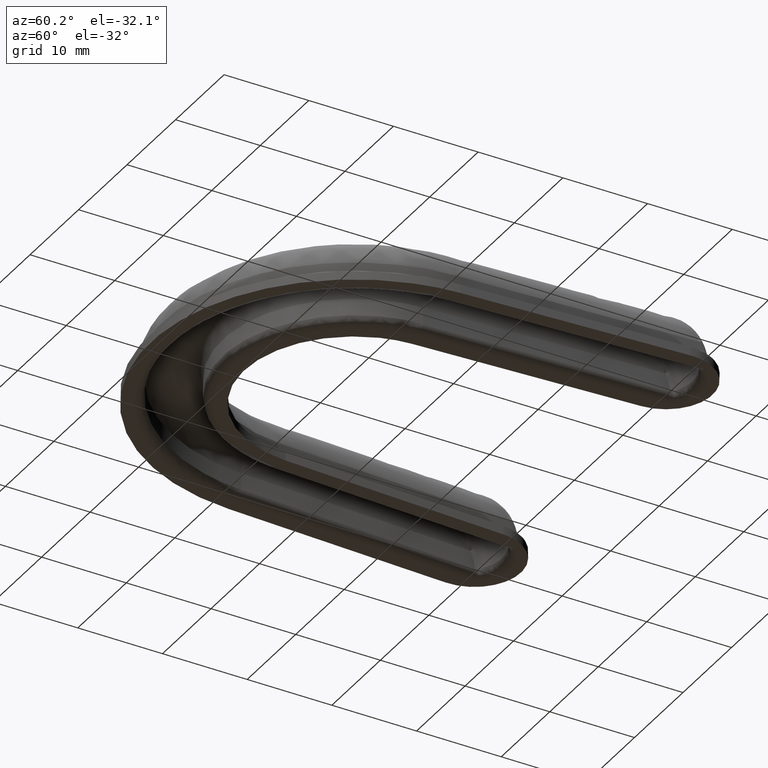
[diagram: clean part render]
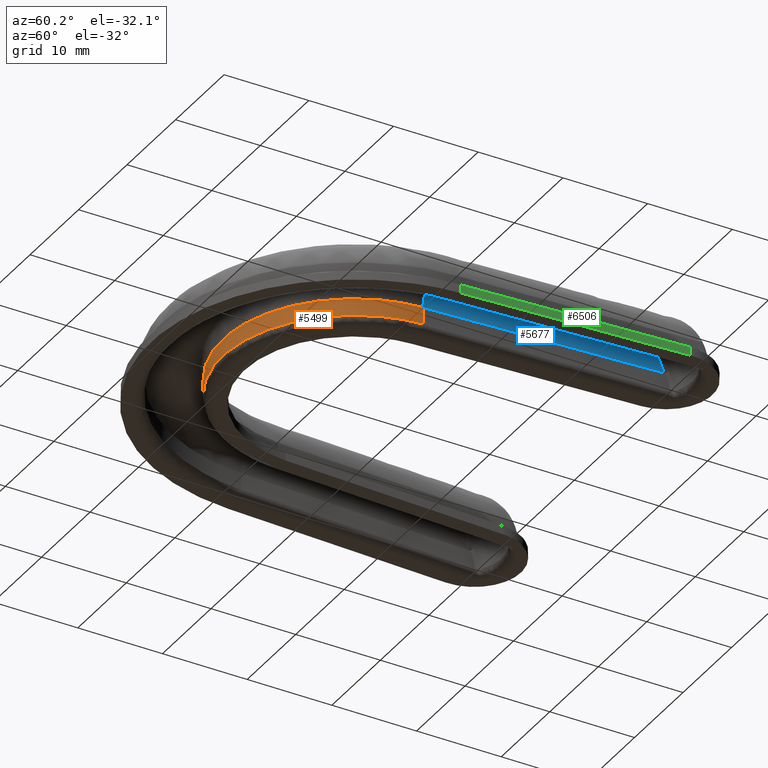
[diagram: same view with three faces highlighted in distinct colors, each labeled with its STEP entity id]
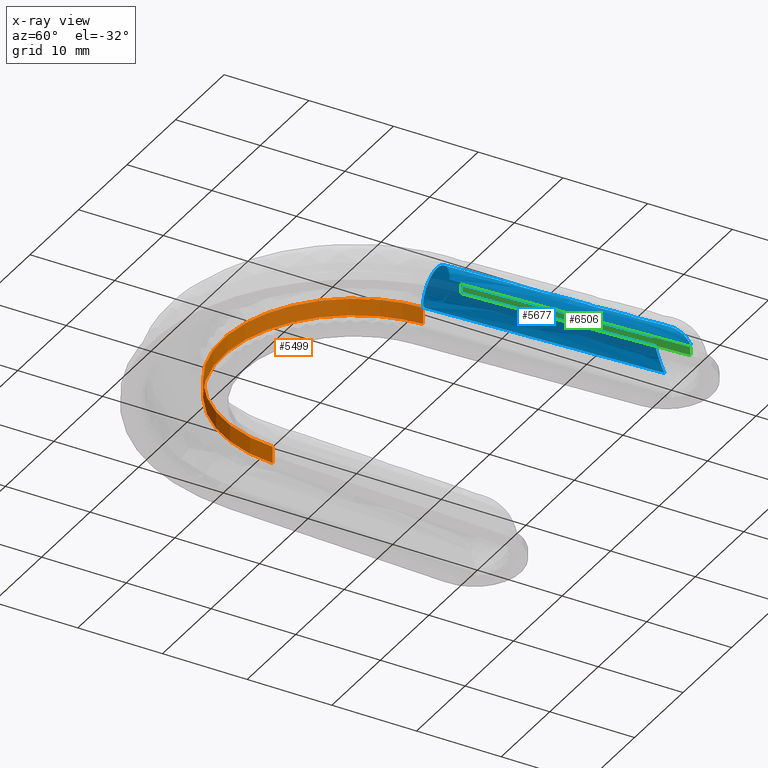
[diagram: x-ray of the same camera — body ghosted, the three highlighted faces saturated]
A machine part, auxiliary view with three faces highlighted in distinct colors.
The next image is the same camera in x-ray (body ghosted, the three faces saturated) — at least one of them is partly hidden behind the body in this view.
Their STEP definitions:

[orange] entity #5499 — the highlighted face is a freeform B-spline surface patch.
#82=CARTESIAN_POINT('',(-15.482390333213750,23.261360871221601,1.0));
#83=VERTEX_POINT('',#82);
#130=CARTESIAN_POINT('',(15.482390333213750,23.261360871221552,1.0));
#131=VERTEX_POINT('',#130);
#145=CARTESIAN_POINT('',(-15.482390333213740,23.261360871221608,1.0));
#146=CARTESIAN_POINT('',(-14.778150325322594,8.500000058304751,1.0));
#147=CARTESIAN_POINT('',(-2.939055E-015,8.500000058304751,1.0));
#148=CARTESIAN_POINT('',(14.778150325322510,8.500000058304751,1.0));
#149=CARTESIAN_POINT('',(15.482390333213729,23.261360871221541,1.0));
#157=(BOUNDED_CURVE()B_SPLINE_CURVE(2,(#145,#146,#147,#148,#149),.UNSPECIFIED.,.F.,.U.)B_SPLINE_CURVE_WITH_KNOTS((3,2,3),(0.0,0.500000000000000,1.0),.UNSPECIFIED.)CURVE()GEOMETRIC_REPRESENTATION_ITEM()RATIONAL_B_SPLINE_CURVE((1.0,0.723758985270579,1.0,0.723758985270579,1.0))REPRESENTATION_ITEM(''));
#158=EDGE_CURVE('',#83,#131,#157,.T.);
#5449=CARTESIAN_POINT('',(15.498605394386169,23.792084099558458,0.949999999999998));
#5450=CARTESIAN_POINT('',(15.498605394386169,23.792084099558458,3.051250000000088));
#5451=CARTESIAN_POINT('',(15.288867122268028,8.157634263079746,0.949999999999998));
#5452=CARTESIAN_POINT('',(15.288867122268028,8.157634263079746,3.051250000000089));
#5453=CARTESIAN_POINT('',(-0.343157113790536,8.503799130502738,0.949999999999998));
#5454=CARTESIAN_POINT('',(-0.343157113790536,8.503799130502738,3.051250000000088));
#5455=CARTESIAN_POINT('',(-15.975181349849100,8.849963997925725,0.949999999999998));
#5456=CARTESIAN_POINT('',(-15.975181349849100,8.849963997925725,3.051250000000089));
#5457=CARTESIAN_POINT('',(-15.492616248916150,24.478372194396730,0.949999999999998));
#5458=CARTESIAN_POINT('',(-15.492616248916150,24.478372194396730,3.051250000000088));
#5466=(BOUNDED_SURFACE()B_SPLINE_SURFACE(1,2,((#5449,#5451,#5453,#5455,#5457),(#5450,#5452,#5454,#5456,#5458)),.UNSPECIFIED.,.F.,.F.,.U.)B_SPLINE_SURFACE_WITH_KNOTS((2,2),(3,2,3),(0.0,2.101250000000090),(0.0,25.839854838738361,51.679709677476723),.UNSPECIFIED.)GEOMETRIC_REPRESENTATION_ITEM()RATIONAL_B_SPLINE_SURFACE(((1.0,0.704014724455968,1.0,0.704014724455968,1.0),(1.0,0.704014724455968,1.0,0.704014724455968,1.0)))REPRESENTATION_ITEM('')SURFACE());
#5467=CARTESIAN_POINT('',(-15.482390333213750,23.261360871221601,3.000000000000085));
#5468=VERTEX_POINT('',#5467);
#5469=CARTESIAN_POINT('',(-15.482390333213750,23.261360871221601,3.000000000000085));
#5470=CARTESIAN_POINT('',(-15.482390333213750,23.261360871221601,1.0));
#5471=QUASI_UNIFORM_CURVE('',1,(#5469,#5470),.UNSPECIFIED.,.F.,.U.);
#5472=EDGE_CURVE('',#5468,#83,#5471,.T.);
#5473=ORIENTED_EDGE('',*,*,#5472,.T.);
#5474=ORIENTED_EDGE('',*,*,#158,.T.);
#5475=CARTESIAN_POINT('',(15.482390333213750,23.261360871221552,3.000000000000085));
#5476=VERTEX_POINT('',#5475);
#5477=CARTESIAN_POINT('',(15.482390333213750,23.261360871221552,3.000000000000085));
#5478=CARTESIAN_POINT('',(15.482390333213750,23.261360871221552,1.0));
#5479=QUASI_UNIFORM_CURVE('',1,(#5477,#5478),.UNSPECIFIED.,.F.,.U.);
#5480=EDGE_CURVE('',#5476,#131,#5479,.T.);
#5481=ORIENTED_EDGE('',*,*,#5480,.F.);
#5482=CARTESIAN_POINT('',(-15.482390333213740,23.261360871221608,3.000000000000085));
#5483=CARTESIAN_POINT('',(-14.778150325322594,8.500000058304751,3.000000000000084));
#5484=CARTESIAN_POINT('',(-2.939055E-015,8.500000058304751,3.000000000000085));
#5485=CARTESIAN_POINT('',(14.778150325322510,8.500000058304751,3.000000000000084));
#5486=CARTESIAN_POINT('',(15.482390333213729,23.261360871221541,3.000000000000085));
#5494=(BOUNDED_CURVE()B_SPLINE_CURVE(2,(#5482,#5483,#5484,#5485,#5486),.UNSPECIFIED.,.F.,.U.)B_SPLINE_CURVE_WITH_KNOTS((3,2,3),(0.0,0.500000000000000,1.0),.UNSPECIFIED.)CURVE()GEOMETRIC_REPRESENTATION_ITEM()RATIONAL_B_SPLINE_CURVE((1.0,0.723758985270579,1.0,0.723758985270579,1.0))REPRESENTATION_ITEM(''));
#5495=EDGE_CURVE('',#5468,#5476,#5494,.T.);
#5496=ORIENTED_EDGE('',*,*,#5495,.F.);
#5497=EDGE_LOOP('',(#5473,#5474,#5481,#5496));
#5498=FACE_OUTER_BOUND('',#5497,.T.);
#5499=ADVANCED_FACE('',(#5498),#5466,.T.);

[blue] entity #5677 — the highlighted face is a freeform B-spline surface patch.
#793=CARTESIAN_POINT('',(22.798794493418750,50.711063574462500,3.000000000000085));
#794=VERTEX_POINT('',#793);
#972=CARTESIAN_POINT('',(19.686002005519502,47.703745122869101,5.999807996171170));
#973=VERTEX_POINT('',#972);
#974=CARTESIAN_POINT('',(19.686002005519502,47.703745122869101,5.999807996171170));
#975=CARTESIAN_POINT('',(19.686954862827559,47.707413528778687,5.999799111348740));
#976=CARTESIAN_POINT('',(19.689409689143389,47.710410269061192,5.999772098055222));
#977=CARTESIAN_POINT('',(19.694524553730862,47.715862664913743,5.999707739404819));
#978=CARTESIAN_POINT('',(19.697306343659690,47.718316945823403,5.999669338742963));
#979=CARTESIAN_POINT('',(19.705829669500321,47.725463914195132,5.999539583072262));
#980=CARTESIAN_POINT('',(19.711775003546808,47.729909416173172,5.999433399635930));
#981=CARTESIAN_POINT('',(19.729740446233031,47.743088015082002,5.999060604107816));
#982=CARTESIAN_POINT('',(19.741927945587001,47.751574847328513,5.998739762227576));
#983=CARTESIAN_POINT('',(19.778534836995529,47.776943818916337,5.997564526977475));
#984=CARTESIAN_POINT('',(19.803076751573780,47.793641096862537,5.996496760874797));
#985=CARTESIAN_POINT('',(19.876689916427161,47.843701870810492,5.992443030643130));
#986=CARTESIAN_POINT('',(19.925756238447899,47.876913662208338,5.988608899773431));
#987=CARTESIAN_POINT('',(20.072525704238881,47.976437619059830,5.973737014762941));
#988=CARTESIAN_POINT('',(20.169883520978839,48.042609006196813,5.959332143737245));
#989=CARTESIAN_POINT('',(20.314948597920509,48.141947362172949,5.930975339506117));
#990=CARTESIAN_POINT('',(20.363166468952262,48.175087314132533,5.920387221880201));
#991=CARTESIAN_POINT('',(20.458656734088780,48.241020910979373,5.897102243704572));
#992=CARTESIAN_POINT('',(20.506003481349950,48.273865185047562,5.884392515853949));
#993=CARTESIAN_POINT('',(20.646824022148390,48.372095936269282,5.843113112348262));
#994=CARTESIAN_POINT('',(20.739079726530989,48.437180993851243,5.811397784578029));
#995=CARTESIAN_POINT('',(21.010726949886749,48.631713922670947,5.703904200603016));
#996=CARTESIAN_POINT('',(21.185035338719249,48.760435101498317,5.615851533624237));
#997=CARTESIAN_POINT('',(21.434785335543040,48.953925185227263,5.458832684392097));
#998=CARTESIAN_POINT('',(21.516230396338631,49.018617459065837,5.402198356826660));
#999=CARTESIAN_POINT('',(21.674155845396889,49.147933773459599,5.280792467750665));
#1000=CARTESIAN_POINT('',(21.749783907671009,49.211854709932553,5.216699136637003));
#1001=CARTESIAN_POINT('',(21.966612070482949,49.401931999733513,5.014638665542862));
#1002=CARTESIAN_POINT('',(22.097824547244990,49.526407534430000,4.866951993305992));
#1003=CARTESIAN_POINT('',(22.273276122983841,49.711621173378433,4.626357885869070));
#1004=CARTESIAN_POINT('',(22.328182794826319,49.773106930060770,4.542967356013699));
#1005=CARTESIAN_POINT('',(22.404832294738441,49.865189579942090,4.412996788214490));
#1006=CARTESIAN_POINT('',(22.429428991262231,49.895859559691687,4.368858058405883));
#1007=CARTESIAN_POINT('',(22.476639558378750,49.957191831527886,4.278919966865386));
#1008=CARTESIAN_POINT('',(22.499250573788800,49.987860576486952,4.233104911382790));
#1009=CARTESIAN_POINT('',(22.605985886400131,50.139575747025127,4.002445001152990));
#1010=CARTESIAN_POINT('',(22.672381962737330,50.257147658648442,3.810894755954460));
#1011=CARTESIAN_POINT('',(22.766103720302262,50.487307949707677,3.415018784453133));
#1012=CARTESIAN_POINT('',(22.793481182839091,50.599876020705508,3.210694125140168));
#1013=CARTESIAN_POINT('',(22.798794493418750,50.711063574462500,3.000000000000085));
#1014=B_SPLINE_CURVE_WITH_KNOTS('',3,(#974,#975,#976,#977,#978,#979,#980,#981,#982,#983,#984,#985,#986,#987,#988,#989,#990,#991,#992,#993,#994,#995,#996,#997,#998,#999,#1000,#1001,#1002,#1003,#1004,#1005,#1006,#1007,#1008,#1009,#1010,#1011,#1012,#1013),.UNSPECIFIED.,.F.,.U.,(4,2,2,2,2,2,2,2,2,2,2,2,2,2,2,2,2,2,2,4),(0.0,0.001953125000001,0.003906250000003,0.007812500000004,0.015625000000006,0.031250000000007,0.062500000000007,0.125000000000008,0.156250000000008,0.187500000000008,0.250000000000007,0.375000000000006,0.437500000000005,0.500000000000004,0.625000000000001,0.687499999999998,0.718749999999997,0.749999999999996,0.874999999999998,1.0),.UNSPECIFIED.);
#1015=EDGE_CURVE('',#973,#794,#1014,.T.);
#1079=CARTESIAN_POINT('',(16.806341765269149,51.012303315167102,3.000000000000085));
#1080=VERTEX_POINT('',#1079);
#1254=CARTESIAN_POINT('',(19.648458390992950,47.703484692415003,5.999995736897100));
#1255=VERTEX_POINT('',#1254);
#1297=CARTESIAN_POINT('',(16.806341765269149,51.012303315167102,3.000000000000085));
#1298=CARTESIAN_POINT('',(16.801094426132359,50.901177205697373,3.211594472327136));
#1299=CARTESIAN_POINT('',(16.817863655477321,50.786415692701993,3.416931072297290));
#1300=CARTESIAN_POINT('',(16.890199948612050,50.547828878447909,3.814971575161303));
#1301=CARTESIAN_POINT('',(16.945818667575260,50.424019611904882,4.007675631761301));
#1302=CARTESIAN_POINT('',(17.038934085862259,50.261988365051280,4.239812175029491));
#1303=CARTESIAN_POINT('',(17.058710692900348,50.229284149636761,4.285696218453929));
#1304=CARTESIAN_POINT('',(17.100207501925599,50.163741760921809,4.375690950702921));
#1305=CARTESIAN_POINT('',(17.121968076768830,50.130832297716907,4.419904437917045));
#1306=CARTESIAN_POINT('',(17.190183641885959,50.031639152495273,4.550218946364897));
#1307=CARTESIAN_POINT('',(17.239567103686859,49.964891297112011,4.633998045262202));
#1308=CARTESIAN_POINT('',(17.345744630904662,49.829882454689482,4.795395690583478));
#1309=CARTESIAN_POINT('',(17.402539683813391,49.761622011826752,4.873014043632842));
#1310=CARTESIAN_POINT('',(17.523301416985849,49.623289066010443,5.021996277560191));
#1311=CARTESIAN_POINT('',(17.587345559491190,49.553136153767390,5.093437783249304));
#1312=CARTESIAN_POINT('',(17.789606694556959,49.339951417442983,5.297567070849642));
#1313=CARTESIAN_POINT('',(17.934888384646879,49.197322612685369,5.417176556299692));
#1314=CARTESIAN_POINT('',(18.243330963927949,48.908750408232443,5.624715093261064));
#1315=CARTESIAN_POINT('',(18.406513099660408,48.762824879433758,5.712637363470002));
#1316=CARTESIAN_POINT('',(18.620709754012370,48.576824064808712,5.802027950613534));
#1317=CARTESIAN_POINT('',(18.664102726247531,48.539409539421833,5.818885172341590));
#1318=CARTESIAN_POINT('',(18.751331118223920,48.464660389857457,5.850304696573040));
#1319=CARTESIAN_POINT('',(18.795229837507598,48.427270334950371,5.864895788410949));
#1320=CARTESIAN_POINT('',(18.927726510274461,48.314996635359137,5.905331561829097));
#1321=CARTESIAN_POINT('',(19.017124577285671,48.240010522181791,5.927843629769483));
#1322=CARTESIAN_POINT('',(19.197793779454042,48.089448445728230,5.963956994385041));
#1323=CARTESIAN_POINT('',(19.289190579988190,48.013786760057442,5.977559723766531));
#1324=CARTESIAN_POINT('',(19.426642761175870,47.900197271350471,5.991096998218401));
#1325=CARTESIAN_POINT('',(19.472565698921080,47.862303576636108,5.994471928437295));
#1326=CARTESIAN_POINT('',(19.541387178483060,47.805243072212789,5.997822590155693));
#1327=CARTESIAN_POINT('',(19.564329661565750,47.786212605467433,5.998653894458982));
#1328=CARTESIAN_POINT('',(19.598492596946070,47.757347800179438,5.999473436390779));
#1329=CARTESIAN_POINT('',(19.609862766258860,47.747698869341292,5.999675310362839));
#1330=CARTESIAN_POINT('',(19.626521091117130,47.732771109609381,5.999872213374668));
#1331=CARTESIAN_POINT('',(19.632024264270509,47.727746192946427,5.999920061475329));
#1332=CARTESIAN_POINT('',(19.639750452367171,47.719707454544867,5.999966323592414));
#1333=CARTESIAN_POINT('',(19.642250163595190,47.716955900627752,5.999977497155927));
#1334=CARTESIAN_POINT('',(19.646587775806630,47.710843875191372,5.999992128543845));
#1335=CARTESIAN_POINT('',(19.648547296373110,47.707297832355103,5.999995584696590));
#1336=CARTESIAN_POINT('',(19.648458390992950,47.703484692415003,5.999995736897100));
#1337=B_SPLINE_CURVE_WITH_KNOTS('',3,(#1297,#1298,#1299,#1300,#1301,#1302,#1303,#1304,#1305,#1306,#1307,#1308,#1309,#1310,#1311,#1312,#1313,#1314,#1315,#1316,#1317,#1318,#1319,#1320,#1321,#1322,#1323,#1324,#1325,#1326,#1327,#1328,#1329,#1330,#1331,#1332,#1333,#1334,#1335,#1336),.UNSPECIFIED.,.F.,.U.,(4,2,2,2,2,2,2,2,2,2,2,2,2,2,2,2,2,2,2,4),(0.0,0.125000000000000,0.249999999999999,0.281249999999999,0.312499999999998,0.374999999999995,0.437499999999993,0.499999999999991,0.624999999999988,0.749999999999985,0.781249999999987,0.812499999999989,0.874999999999993,0.937499999999996,0.968749999999999,0.984375000000002,0.992187500000004,0.996093750000003,0.998046875000002,0.999992286946678),.UNSPECIFIED.);
#1338=EDGE_CURVE('',#1080,#1255,#1337,.T.);
#5435=CARTESIAN_POINT('',(19.648458390992950,47.703484692415003,5.999995736897100));
#5436=CARTESIAN_POINT('',(19.652264866145199,47.703511095823750,5.999994464919872));
#5437=CARTESIAN_POINT('',(19.659877825365768,47.703563902703053,5.999991920962438));
#5438=CARTESIAN_POINT('',(19.671297147388898,47.703643109891651,5.999937963818194));
#5439=CARTESIAN_POINT('',(19.680005183907092,47.703703516979459,5.999870217566383));
#5440=CARTESIAN_POINT('',(19.684906720211242,47.703737523761667,5.999819431168911));
#5441=CARTESIAN_POINT('',(19.686002005519502,47.703745122869101,5.999807996171170));
#5442=B_SPLINE_CURVE_WITH_KNOTS('',3,(#5435,#5436,#5437,#5438,#5439,#5440,#5441),.UNSPECIFIED.,.F.,.U.,(4,1,1,1,4),(0.0,0.299999487226004,0.599999677155442,0.899999159032197,0.986326987488544),.UNSPECIFIED.);
#5443=EDGE_CURVE('',#1255,#973,#5442,.T.);
#5475=CARTESIAN_POINT('',(15.482390333213750,23.261360871221552,3.000000000000085));
#5476=VERTEX_POINT('',#5475);
#5534=CARTESIAN_POINT('',(21.475573710550101,22.975436046102750,3.000000000000085));
#5535=VERTEX_POINT('',#5534);
#5536=CARTESIAN_POINT('',(21.475573710550130,22.975436046102750,3.000000000000085));
#5537=CARTESIAN_POINT('',(21.475573710550126,22.975436046102743,6.000000000000086));
#5538=CARTESIAN_POINT('',(18.478982021881951,23.118398458662149,6.000000000000085));
#5539=CARTESIAN_POINT('',(15.482390333213772,23.261360871221559,6.000000000000086));
#5540=CARTESIAN_POINT('',(15.482390333213770,23.261360871221552,3.000000000000085));
#5548=(BOUNDED_CURVE()B_SPLINE_CURVE(2,(#5536,#5537,#5538,#5539,#5540),.UNSPECIFIED.,.F.,.U.)B_SPLINE_CURVE_WITH_KNOTS((3,2,3),(0.0,0.500000000000000,1.0),.UNSPECIFIED.)CURVE()GEOMETRIC_REPRESENTATION_ITEM()RATIONAL_B_SPLINE_CURVE((1.0,0.707106781186548,1.0,0.707106781186548,1.0))REPRESENTATION_ITEM(''));
#5549=EDGE_CURVE('',#5535,#5476,#5548,.T.);
#5627=CARTESIAN_POINT('',(15.482390333213750,23.261360871221552,3.000000000000085));
#5628=CARTESIAN_POINT('',(16.806341765269149,51.012303315167102,3.000000000000085));
#5629=QUASI_UNIFORM_CURVE('',1,(#5627,#5628),.UNSPECIFIED.,.F.,.U.);
#5630=EDGE_CURVE('',#5476,#1080,#5629,.T.);
#5643=CARTESIAN_POINT('',(21.475573710550101,22.975436046102750,3.000000000000085));
#5644=CARTESIAN_POINT('',(22.798794493418750,50.711063574462500,3.000000000000085));
#5645=QUASI_UNIFORM_CURVE('',1,(#5643,#5644),.UNSPECIFIED.,.F.,.U.);
#5646=EDGE_CURVE('',#5535,#794,#5645,.T.);
#5651=CARTESIAN_POINT('',(21.439622893145849,22.281798550695068,2.869141837904081));
#5652=CARTESIAN_POINT('',(22.830599305262322,51.437632458784464,2.869141837904081));
#5653=CARTESIAN_POINT('',(21.578571177038288,22.275169558843650,6.055200448756040));
#5654=CARTESIAN_POINT('',(22.969547589154768,51.431003466933042,6.055200448756040));
#5655=CARTESIAN_POINT('',(18.393585559697708,22.427119932844850,5.999543085469249));
#5656=CARTESIAN_POINT('',(19.784561971814181,51.582953840934238,5.999543085469252));
#5657=CARTESIAN_POINT('',(15.208599942357125,22.579070306846063,5.943885722182456));
#5658=CARTESIAN_POINT('',(16.599576354473591,51.734904214935455,5.943885722182467));
#5659=CARTESIAN_POINT('',(15.458529099221019,22.567146601868401,2.764622712816545));
#5660=CARTESIAN_POINT('',(16.849505511337480,51.722980509957793,2.764622712816548));
#5668=(BOUNDED_SURFACE()B_SPLINE_SURFACE(1,2,((#5651,#5653,#5655,#5657,#5659),(#5652,#5654,#5656,#5658,#5660)),.UNSPECIFIED.,.F.,.F.,.U.)B_SPLINE_SURFACE_WITH_KNOTS((2,2),(3,2,3),(0.0,29.188995636286631),(0.0,5.186648387007559,10.373296774015120),.UNSPECIFIED.)GEOMETRIC_REPRESENTATION_ITEM()RATIONAL_B_SPLINE_SURFACE(((1.0,0.685182990326359,1.0,0.685182990326359,1.0),(1.0,0.685182990326359,1.0,0.685182990326359,1.0)))REPRESENTATION_ITEM('')SURFACE());
#5669=ORIENTED_EDGE('',*,*,#5630,.T.);
#5670=ORIENTED_EDGE('',*,*,#1338,.T.);
#5671=ORIENTED_EDGE('',*,*,#5443,.T.);
#5672=ORIENTED_EDGE('',*,*,#1015,.T.);
#5673=ORIENTED_EDGE('',*,*,#5646,.F.);
#5674=ORIENTED_EDGE('',*,*,#5549,.T.);
#5675=EDGE_LOOP('',(#5669,#5670,#5671,#5672,#5673,#5674));
#5676=FACE_OUTER_BOUND('',#5675,.T.);
#5677=ADVANCED_FACE('',(#5676),#5668,.F.);

[green] entity #6506 — the highlighted face is a freeform B-spline surface patch.
#5893=CARTESIAN_POINT('',(25.231653953539801,49.244150814416102,1.000000000000084));
#5894=VERTEX_POINT('',#5893);
#5908=CARTESIAN_POINT('',(25.231653953539801,49.244150814416102,0.0));
#5909=VERTEX_POINT('',#5908);
#5910=CARTESIAN_POINT('',(25.231653953539801,49.244150814416102,0.0));
#5911=CARTESIAN_POINT('',(25.231653953539801,49.244150814416102,1.000000000000084));
#5912=QUASI_UNIFORM_CURVE('',1,(#5910,#5911),.UNSPECIFIED.,.F.,.U.);
#5913=EDGE_CURVE('',#5909,#5894,#5912,.T.);
#6294=CARTESIAN_POINT('',(23.972733509345399,22.856300699524802,1.000000000000084));
#6295=VERTEX_POINT('',#6294);
#6318=CARTESIAN_POINT('',(23.972733509345399,22.856300699524802,0.0));
#6319=VERTEX_POINT('',#6318);
#6335=CARTESIAN_POINT('',(23.972733509345399,22.856300699524802,0.0));
#6336=CARTESIAN_POINT('',(23.972733509345399,22.856300699524802,1.000000000000084));
#6337=QUASI_UNIFORM_CURVE('',1,(#6335,#6336),.UNSPECIFIED.,.F.,.U.);
#6338=EDGE_CURVE('',#6319,#6295,#6337,.T.);
#6487=CARTESIAN_POINT('',(25.294537147523720,50.562225112144198,-0.049949998061810));
#6488=CARTESIAN_POINT('',(23.909850396110951,21.538226870869781,-0.049949998061810));
#6489=CARTESIAN_POINT('',(25.294537147523720,50.562225112144198,1.049950024883984));
#6490=CARTESIAN_POINT('',(23.909850396110951,21.538226870869781,1.049950024883984));
#6491=B_SPLINE_SURFACE_WITH_KNOTS('',1,1,((#6487,#6489),(#6488,#6490)),.UNSPECIFIED.,.F.,.F.,.U.,(2,2),(2,2),(0.0,29.057010020114571),(0.041708334948495,0.958291687403247),.UNSPECIFIED.);
#6492=CARTESIAN_POINT('',(23.972733509345399,22.856300699524802,0.0));
#6493=CARTESIAN_POINT('',(25.231653953539801,49.244150814416102,0.0));
#6494=QUASI_UNIFORM_CURVE('',1,(#6492,#6493),.UNSPECIFIED.,.F.,.U.);
#6495=EDGE_CURVE('',#6319,#5909,#6494,.T.);
#6496=ORIENTED_EDGE('',*,*,#6495,.T.);
#6497=ORIENTED_EDGE('',*,*,#5913,.T.);
#6498=CARTESIAN_POINT('',(23.972733509345399,22.856300699524802,1.000000000000084));
#6499=CARTESIAN_POINT('',(25.231653953539801,49.244150814416102,1.000000000000084));
#6500=QUASI_UNIFORM_CURVE('',1,(#6498,#6499),.UNSPECIFIED.,.F.,.U.);
#6501=EDGE_CURVE('',#6295,#5894,#6500,.T.);
#6502=ORIENTED_EDGE('',*,*,#6501,.F.);
#6503=ORIENTED_EDGE('',*,*,#6338,.F.);
#6504=EDGE_LOOP('',(#6496,#6497,#6502,#6503));
#6505=FACE_OUTER_BOUND('',#6504,.T.);
#6506=ADVANCED_FACE('',(#6505),#6491,.F.);